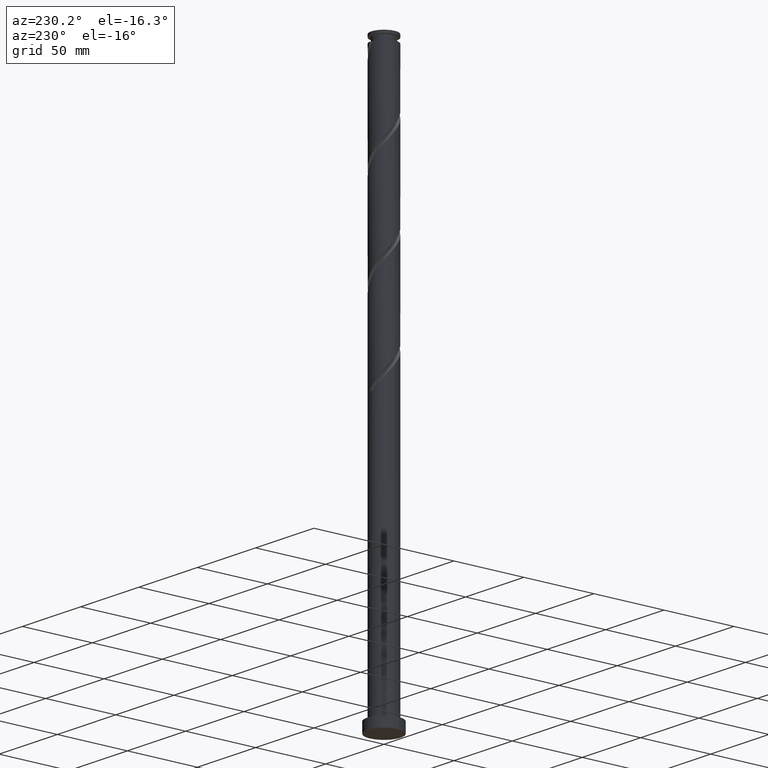
[diagram: clean part render]
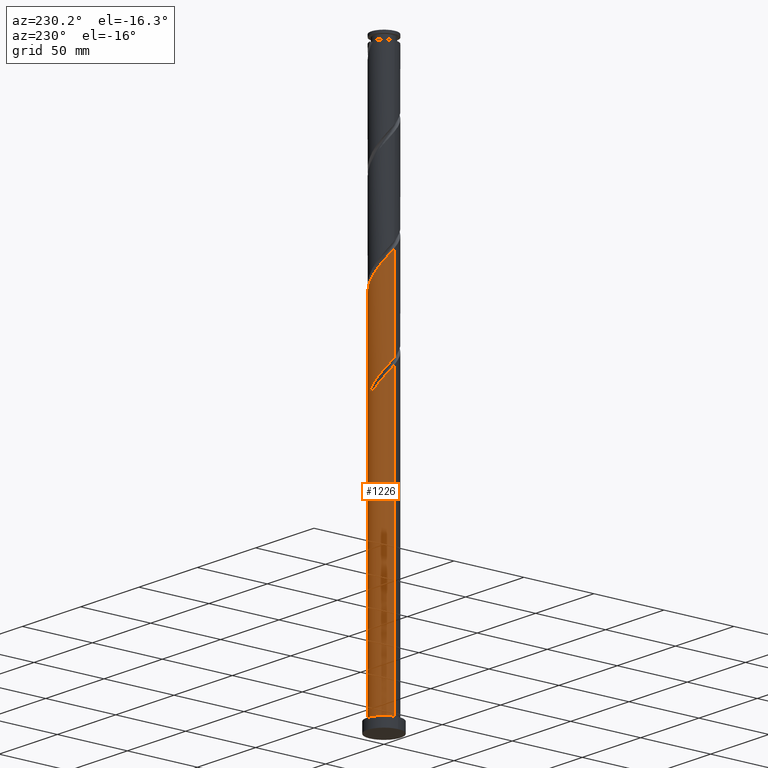
[diagram: same view with one face highlighted and labeled with its STEP entity id]
A machine part, auxiliary view. The second image highlights one B-rep face of the part: STEP entity #1226.
In plain terms, the highlighted cylindrical surface (edge-blend (fillet) strip) has radius 9 mm, axis along (-0, -0, -1).
Its self-contained STEP definition (entity closure, byte-faithful):
#41 = CARTESIAN_POINT ( 'NONE',  ( -6.116325667208115213, 6.669734571524163158, 204.5006899178498543 ) ) ;
#62 = CARTESIAN_POINT ( 'NONE',  ( -6.633197067675520309, 6.082819795241444005, 201.1673565845164831 ) ) ;
#78 = CARTESIAN_POINT ( 'NONE',  ( 0.000000000000000000, 0.000000000000000000, 194.5006899178498259 ) ) ;
#79 = VERTEX_POINT ( 'NONE', #1421 ) ;
#109 = CARTESIAN_POINT ( 'NONE',  ( 6.116325667208127648, 6.669734571524174704, 251.1673565845165115 ) ) ;
#113 = CARTESIAN_POINT ( 'NONE',  ( 9.000000000000000000, 1.102182119232617714E-15, 400.0000000000000000 ) ) ;
#119 = CARTESIAN_POINT ( 'NONE',  ( -8.834322409043316782, 1.962026119858957696, 273.3895788067387116 ) ) ;
#123 = DIRECTION ( 'NONE',  ( -0.000000000000000000, -0.000000000000000000, -1.000000000000000000 ) ) ;
#126 = AXIS2_PLACEMENT_3D ( 'NONE', #1934, #1477, #1171 ) ;
#182 = CARTESIAN_POINT ( 'NONE',  ( 9.000000000000000000, 1.102182119232617714E-15, 7.000000000000000000 ) ) ;
#193 = CARTESIAN_POINT ( 'NONE',  ( -8.868583025750210069, 1.800842590930307185, 211.1673565845164831 ) ) ;
#222 = CARTESIAN_POINT ( 'NONE',  ( -8.533832754774719476, 2.858968085434734796, 205.6118010289609686 ) ) ;
#232 = ORIENTED_EDGE ( 'NONE', *, *, #259, .F. ) ;
#247 = EDGE_CURVE ( 'NONE', #1025, #79, #997, .T. ) ;
#250 = CARTESIAN_POINT ( 'NONE',  ( -8.941760922783203114, 1.022209176141317677, 207.8340232511831118 ) ) ;
#259 = EDGE_CURVE ( 'NONE', #79, #922, #1620, .T. ) ;
#260 = VERTEX_POINT ( 'NONE', #1275 ) ;
#267 = CARTESIAN_POINT ( 'NONE',  ( 1.027839790055897984, 8.991014641736025936, 257.8340232511831687 ) ) ;
#296 = CARTESIAN_POINT ( 'NONE',  ( 3.735334782763725325, 8.188239985532652199, 254.5006899178497974 ) ) ;
#321 = VERTEX_POINT ( 'NONE', #1815 ) ;
#330 = DIRECTION ( 'NONE',  ( 0.000000000000000000, 0.000000000000000000, 1.000000000000000000 ) ) ;
#360 = VERTEX_POINT ( 'NONE', #1950 ) ;
#363 = CARTESIAN_POINT ( 'NONE',  ( -5.356139575911533335, 7.232687525626570135, 203.3895788067386832 ) ) ;
#364 = DIRECTION ( 'NONE',  ( -1.000000000000000000, 0.000000000000000000, 0.000000000000000000 ) ) ;
#400 = ORIENTED_EDGE ( 'NONE', *, *, #1608, .F. ) ;
#404 = FACE_OUTER_BOUND ( 'NONE', #1035, .T. ) ;
#408 = ORIENTED_EDGE ( 'NONE', *, *, #610, .F. ) ;
#413 = CARTESIAN_POINT ( 'NONE',  ( 8.868583025750229609, 1.800842590930306519, 244.5006899178498259 ) ) ;
#427 = CARTESIAN_POINT ( 'NONE',  ( 8.958891231136661304, 0.8592251792533075472, 243.3895788067387116 ) ) ;
#448 = CARTESIAN_POINT ( 'NONE',  ( 8.584475003159710127, 2.703107271294720171, 245.6118010289609401 ) ) ;
#464 = EDGE_CURVE ( 'NONE', #321, #1025, #1982, .T. ) ;
#495 = DIRECTION ( 'NONE',  ( -0.000000000000000000, -0.000000000000000000, -1.000000000000000000 ) ) ;
#503 = CARTESIAN_POINT ( 'NONE',  ( -4.595953484614954121, 7.795640479728977112, 202.2784676956276257 ) ) ;
#510 = CARTESIAN_POINT ( 'NONE',  ( -0.08194087915361840391, 8.999626975176445498, 196.7229121400720544 ) ) ;
#533 = CARTESIAN_POINT ( 'NONE',  ( -9.000000000000014211, -6.816477431823385273E-15, 209.0419133409949666 ) ) ;
#561 = CARTESIAN_POINT ( 'NONE',  ( -9.000000000000014211, -6.816477431823385273E-15, 275.7085800076616238 ) ) ;
#569 = CARTESIAN_POINT ( 'NONE',  ( -9.000000000000015987, 0.5127636370179046166, 275.1029886982771586 ) ) ;
#581 = CARTESIAN_POINT ( 'NONE',  ( -8.533832754774719476, 2.858968085434734796, 272.2784676956275689 ) ) ;
#600 = CARTESIAN_POINT ( 'NONE',  ( -4.453245951908129108, 7.878032712152670314, 264.5006899178497974 ) ) ;
#610 = EDGE_CURVE ( 'NONE', #1167, #260, #1258, .T. ) ;
#669 = CARTESIAN_POINT ( 'NONE',  ( 1.790977386791922310, 8.819999999999996732, 194.5006899178497974 ) ) ;
#678 = CARTESIAN_POINT ( 'NONE',  ( -3.735334782763714223, 8.188239985532636211, 201.1673565845165115 ) ) ;
#685 = CARTESIAN_POINT ( 'NONE',  ( -7.752935145509708192, 4.570776370543696565, 203.3895788067386263 ) ) ;
#690 = VECTOR ( 'NONE', #495, 1000.000000000000000 ) ;
#710 = ORIENTED_EDGE ( 'NONE', *, *, #1830, .T. ) ;
#725 = CARTESIAN_POINT ( 'NONE',  ( -6.633197067675520309, 6.082819795241444005, 267.8340232511831118 ) ) ;
#734 = CARTESIAN_POINT ( 'NONE',  ( -8.233343100506131051, 3.755910051010512785, 271.1673565845164831 ) ) ;
#765 = CARTESIAN_POINT ( 'NONE',  ( -8.941760922783203114, 1.022209176141317677, 274.5006899178497974 ) ) ;
#799 = CARTESIAN_POINT ( 'NONE',  ( 1.790977386791922532, 8.819999999999996732, 194.5006899178497974 ) ) ;
#804 = CARTESIAN_POINT ( 'NONE',  ( -8.584475003159690587, 2.703107271294722835, 210.0562454734053688 ) ) ;
#805 = CARTESIAN_POINT ( 'NONE',  ( -1.790977386791919868, 8.820000000000012719, 194.5006899178497974 ) ) ;
#814 = CARTESIAN_POINT ( 'NONE',  ( -8.958891231136643540, 0.8592251792533156518, 212.2784676956275689 ) ) ;
#831 = CARTESIAN_POINT ( 'NONE',  ( 0.8639580317486544869, 9.008239308616881047, 195.6118010289609686 ) ) ;
#839 = CARTESIAN_POINT ( 'NONE',  ( -8.834322409043316782, 1.962026119858957696, 206.7229121400720544 ) ) ;
#889 = CARTESIAN_POINT ( 'NONE',  ( 4.595953484614971885, 7.795640479728988659, 253.3895788067387969 ) ) ;
#922 = VERTEX_POINT ( 'NONE', #799 ) ;
#944 = EDGE_CURVE ( 'NONE', #1599, #260, #1625, .T. ) ;
#965 = CARTESIAN_POINT ( 'NONE',  ( -9.000000000000000000, 0.000000000000000000, 400.0000000000000000 ) ) ;
#981 = CIRCLE ( 'NONE', #1461, 9.000000000000000000 ) ;
#982 = ORIENTED_EDGE ( 'NONE', *, *, #1746, .T. ) ;
#997 = LINE ( 'NONE', #965, #1724 ) ;
#998 = DIRECTION ( 'NONE',  ( 0.000000000000000000, -0.000000000000000000, -1.000000000000000000 ) ) ;
#1015 = CARTESIAN_POINT ( 'NONE',  ( -5.223556448372938199, 7.329014806279336547, 198.9451343622942545 ) ) ;
#1021 = CARTESIAN_POINT ( 'NONE',  ( 1.951277935484194481, 8.785927066536167729, 256.7229121400720260 ) ) ;
#1025 = VERTEX_POINT ( 'NONE', #1125 ) ;
#1030 = CARTESIAN_POINT ( 'NONE',  ( 8.300366980569192421, 3.605371951659134933, 246.7229121400721112 ) ) ;
#1035 = EDGE_LOOP ( 'NONE', ( #1436, #710, #1604, #408, #400, #982, #232, #1482 ) ) ;
#1059 = CARTESIAN_POINT ( 'NONE',  ( -5.223556448372938199, 7.329014806279336547, 265.6118010289608833 ) ) ;
#1113 = CARTESIAN_POINT ( 'NONE',  ( -9.000000000000014211, -6.816477431823385273E-15, 209.0419133409949950 ) ) ;
#1125 = CARTESIAN_POINT ( 'NONE',  ( -9.000000000000014211, -6.816477431823385273E-15, 275.7085800076616238 ) ) ;
#1167 = VERTEX_POINT ( 'NONE', #1113 ) ;
#1171 = DIRECTION ( 'NONE',  ( -1.000000000000000000, 0.000000000000000000, 0.000000000000000000 ) ) ;
#1172 = CARTESIAN_POINT ( 'NONE',  ( 6.742855367982802939, 5.961031914565275258, 250.0562454734054256 ) ) ;
#1226 = ADVANCED_FACE ( 'NONE', ( #404 ), #1948, .T. ) ;
#1258 = LINE ( 'NONE', #1892, #690 ) ;
#1275 = CARTESIAN_POINT ( 'NONE',  ( -9.000000000000000000, 0.000000000000000000, 7.000000000000000000 ) ) ;
#1332 = CARTESIAN_POINT ( 'NONE',  ( -7.752935145509708192, 4.570776370543696565, 270.0562454734053404 ) ) ;
#1343 = CARTESIAN_POINT ( 'NONE',  ( 7.834876024663330440, 4.428850604632764032, 247.8340232511831687 ) ) ;
#1348 = LINE ( 'NONE', #113, #1629 ) ;
#1365 = CARTESIAN_POINT ( 'NONE',  ( 5.356139575911548434, 7.232687525626578129, 252.2784676956275121 ) ) ;
#1416 = CARTESIAN_POINT ( 'NONE',  ( -2.874716080912472549, 8.580839491336300640, 200.0562454734053688 ) ) ;
#1417 = CARTESIAN_POINT ( 'NONE',  ( -2.717996741835190022, 8.631760691383133732, 195.6118010289609401 ) ) ;
#1421 = CARTESIAN_POINT ( 'NONE',  ( -9.000000000000000000, 1.133089888886440769E-14, 213.2927998280379995 ) ) ;
#1422 =( BOUNDED_CURVE ( )  B_SPLINE_CURVE ( 2, ( #805, #1417, #1449, #1930, #1015, #1642, #62, #1607, #685, #1615, #222, #839, #250, #1943, #533 ),
 .UNSPECIFIED., .F., .T. ) 
 B_SPLINE_CURVE_WITH_KNOTS ( ( 3, 2, 2, 2, 2, 2, 2, 3 ),
 ( 0.000000000000000000, 0.008333333333333303727, 0.01666666666666671848, 0.02500000000000002220, 0.03333333333333332593, 0.04166666666666662966, 0.05000000000000004441, 0.05452860127731152390 ),
 .UNSPECIFIED. ) 
 CURVE ( )  GEOMETRIC_REPRESENTATION_ITEM ( )  RATIONAL_B_SPLINE_CURVE ( ( 0.9090909090909319312, 0.9041108139711800940, 0.9090909090909319312, 0.9041108139711800940, 0.9090909090909319312, 0.9041108139711800940, 0.9090909090909319312, 0.9041108139711800940, 0.9090909090909319312, 0.9041108139711800940, 0.9090909090909319312, 0.9041108139711800940, 0.9090909090909319312, 0.9063845652764790373, 0.9066196499552201526 ) ) 
 REPRESENTATION_ITEM ( '' )  );
#1424 = CARTESIAN_POINT ( 'NONE',  ( 0.000000000000000000, 0.000000000000000000, 7.000000000000000000 ) ) ;
#1430 = CARTESIAN_POINT ( 'NONE',  ( -7.369385068757460466, 5.252329257606380253, 206.7229121400721397 ) ) ;
#1436 = ORIENTED_EDGE ( 'NONE', *, *, #464, .F. ) ;
#1440 = CARTESIAN_POINT ( 'NONE',  ( -6.742855367982785175, 5.961031914565269929, 205.6118010289609686 ) ) ;
#1449 = CARTESIAN_POINT ( 'NONE',  ( -3.585621346871660009, 8.254896701767901135, 196.7229121400719976 ) ) ;
#1461 = AXIS2_PLACEMENT_3D ( 'NONE', #78, #998, #364 ) ;
#1477 = DIRECTION ( 'NONE',  ( -0.000000000000000000, -0.000000000000000000, -1.000000000000000000 ) ) ;
#1482 = ORIENTED_EDGE ( 'NONE', *, *, #247, .F. ) ;
#1489 = CARTESIAN_POINT ( 'NONE',  ( -0.8639580317486471595, 9.008239308616900587, 260.0562454734053972 ) ) ;
#1498 = CARTESIAN_POINT ( 'NONE',  ( -3.585621346871660009, 8.254896701767901135, 263.3895788067386547 ) ) ;
#1518 = CARTESIAN_POINT ( 'NONE',  ( 7.369385068757479118, 5.252329257606382917, 248.9451343622943114 ) ) ;
#1531 = CARTESIAN_POINT ( 'NONE',  ( 9.000000000000015987, 0.4305959935807255334, 242.8837951998923472 ) ) ;
#1585 = CARTESIAN_POINT ( 'NONE',  ( -1.951277935484181381, 8.785927066536149965, 198.9451343622942545 ) ) ;
#1597 = CARTESIAN_POINT ( 'NONE',  ( -7.834876024663315341, 4.428850604632757815, 207.8340232511831402 ) ) ;
#1599 = VERTEX_POINT ( 'NONE', #182 ) ;
#1604 = ORIENTED_EDGE ( 'NONE', *, *, #944, .T. ) ;
#1606 = CARTESIAN_POINT ( 'NONE',  ( -9.000000000000000000, 1.133089888886441085E-14, 213.2927998280379995 ) ) ;
#1607 = CARTESIAN_POINT ( 'NONE',  ( -7.272527190513290662, 5.385642690076883454, 202.2784676956276257 ) ) ;
#1608 = EDGE_CURVE ( 'NONE', #360, #1167, #1422, .T. ) ;
#1615 = CARTESIAN_POINT ( 'NONE',  ( -8.233343100506131051, 3.755910051010512785, 204.5006899178497974 ) ) ;
#1620 =( BOUNDED_CURVE ( )  B_SPLINE_CURVE ( 2, ( #1606, #1762, #814, #193, #804, #1929, #1597, #1430, #1440, #41, #363, #503, #678, #1416, #1585, #1738, #510, #831, #669 ),
 .UNSPECIFIED., .F., .T. ) 
 B_SPLINE_CURVE_WITH_KNOTS ( ( 3, 2, 2, 2, 2, 2, 2, 2, 2, 3 ),
 ( 0.9295286012773115170, 0.9333333333333333481, 0.9416666666666666519, 0.9499999999999999556, 0.9583333333333333703, 0.9666666666666666741, 0.9749999999999999778, 0.9833333333333332815, 0.9916666666666666963, 1.000000000000000000 ),
 .UNSPECIFIED. ) 
 CURVE ( )  GEOMETRIC_REPRESENTATION_ITEM ( )  RATIONAL_B_SPLINE_CURVE ( ( 0.9066196499552124921, 0.9068171577856252163, 0.9090909090909240486, 0.9041108139711723224, 0.9090909090909240486, 0.9041108139711723224, 0.9090909090909240486, 0.9041108139711723224, 0.9090909090909240486, 0.9041108139711723224, 0.9090909090909240486, 0.9041108139711723224, 0.9090909090909240486, 0.9041108139711723224, 0.9090909090909240486, 0.9041108139711723224, 0.9090909090909240486, 0.9041108139711723224, 0.9090909090909240486 ) ) 
 REPRESENTATION_ITEM ( '' )  );
#1622 = DIRECTION ( 'NONE',  ( -0.000000000000000000, -0.000000000000000000, -1.000000000000000000 ) ) ;
#1625 = CIRCLE ( 'NONE', #1688, 9.000000000000000000 ) ;
#1629 = VECTOR ( 'NONE', #123, 1000.000000000000000 ) ;
#1642 = CARTESIAN_POINT ( 'NONE',  ( -5.993866944837749955, 6.779996900406008997, 200.0562454734054256 ) ) ;
#1648 = CARTESIAN_POINT ( 'NONE',  ( 0.08194087915362534280, 8.999626975176459709, 258.9451343622941977 ) ) ;
#1684 = CARTESIAN_POINT ( 'NONE',  ( -7.272527190513290662, 5.385642690076883454, 268.9451343622942545 ) ) ;
#1688 = AXIS2_PLACEMENT_3D ( 'NONE', #1424, #330, #1710 ) ;
#1710 = DIRECTION ( 'NONE',  ( 1.000000000000000000, 0.000000000000000000, 0.000000000000000000 ) ) ;
#1724 = VECTOR ( 'NONE', #1622, 1000.000000000000000 ) ;
#1738 = CARTESIAN_POINT ( 'NONE',  ( -1.027839790055891989, 8.991014641736004620, 197.8340232511831971 ) ) ;
#1746 = EDGE_CURVE ( 'NONE', #360, #922, #981, .T. ) ;
#1762 = CARTESIAN_POINT ( 'NONE',  ( -9.000000000000000000, 0.4305959935807524563, 212.7842513024739333 ) ) ;
#1803 = CARTESIAN_POINT ( 'NONE',  ( -5.993866944837749955, 6.779996900406008997, 266.7229121400720828 ) ) ;
#1812 = CARTESIAN_POINT ( 'NONE',  ( -1.790977386791919868, 8.820000000000012719, 261.1673565845164262 ) ) ;
#1815 = CARTESIAN_POINT ( 'NONE',  ( 9.000000000000014211, 3.707207024324998828E-15, 242.3752466743283378 ) ) ;
#1830 = EDGE_CURVE ( 'NONE', #321, #1599, #1348, .T. ) ;
#1846 = CARTESIAN_POINT ( 'NONE',  ( 9.000000000000014211, 3.707207024324998828E-15, 242.3752466743283378 ) ) ;
#1892 = CARTESIAN_POINT ( 'NONE',  ( -9.000000000000000000, 0.000000000000000000, 400.0000000000000000 ) ) ;
#1929 = CARTESIAN_POINT ( 'NONE',  ( -8.300366980569171105, 3.605371951659137597, 208.9451343622942545 ) ) ;
#1930 = CARTESIAN_POINT ( 'NONE',  ( -4.453245951908129108, 7.878032712152670314, 197.8340232511831971 ) ) ;
#1934 = CARTESIAN_POINT ( 'NONE',  ( 0.000000000000000000, 0.000000000000000000, 400.0000000000000000 ) ) ;
#1943 = CARTESIAN_POINT ( 'NONE',  ( -9.000000000000017764, 0.5127636370178912939, 208.4363220316104446 ) ) ;
#1948 = CYLINDRICAL_SURFACE ( 'NONE', #126, 9.000000000000000000 ) ;
#1950 = CARTESIAN_POINT ( 'NONE',  ( -1.790977386791919868, 8.820000000000012719, 194.5006899178497974 ) ) ;
#1966 = CARTESIAN_POINT ( 'NONE',  ( 2.874716080912484539, 8.580839491336313074, 255.6118010289609686 ) ) ;
#1982 =( BOUNDED_CURVE ( )  B_SPLINE_CURVE ( 2, ( #1846, #1531, #427, #413, #448, #1030, #1343, #1518, #1172, #109, #1365, #889, #296, #1966, #1021, #267, #1648, #1489, #1812, #1994, #1498, #600, #1059, #1803, #725, #1684, #1332, #734, #581, #119, #765, #569, #561 ),
 .UNSPECIFIED., .F., .T. ) 
 B_SPLINE_CURVE_WITH_KNOTS ( ( 3, 2, 2, 2, 2, 2, 2, 2, 2, 2, 2, 2, 2, 2, 2, 2, 3 ),
 ( 0.1795286012773113504, 0.1833333333333333481, 0.1916666666666666519, 0.1999999999999999556, 0.2083333333333333703, 0.2166666666666666741, 0.2249999999999999778, 0.2333333333333332815, 0.2416666666666666963, 0.2500000000000000000, 0.2583333333333333037, 0.2666666666666667185, 0.2750000000000000222, 0.2833333333333333259, 0.2916666666666666297, 0.3000000000000000444, 0.3045286012773114059 ),
 .UNSPECIFIED. ) 
 CURVE ( )  GEOMETRIC_REPRESENTATION_ITEM ( )  RATIONAL_B_SPLINE_CURVE ( ( 0.9066196499552201526, 0.9068171577856329879, 0.9090909090909319312, 0.9041108139711800940, 0.9090909090909319312, 0.9041108139711800940, 0.9090909090909319312, 0.9041108139711800940, 0.9090909090909319312, 0.9041108139711800940, 0.9090909090909319312, 0.9041108139711800940, 0.9090909090909319312, 0.9041108139711800940, 0.9090909090909319312, 0.9041108139711800940, 0.9090909090909319312, 0.9041108139711800940, 0.9090909090909319312, 0.9041108139711800940, 0.9090909090909319312, 0.9041108139711800940, 0.9090909090909319312, 0.9041108139711800940, 0.9090909090909319312, 0.9041108139711800940, 0.9090909090909319312, 0.9041108139711800940, 0.9090909090909319312, 0.9041108139711800940, 0.9090909090909319312, 0.9063845652764790373, 0.9066196499552201526 ) ) 
 REPRESENTATION_ITEM ( '' )  );
#1994 = CARTESIAN_POINT ( 'NONE',  ( -2.717996741835190022, 8.631760691383133732, 262.2784676956276257 ) ) ;